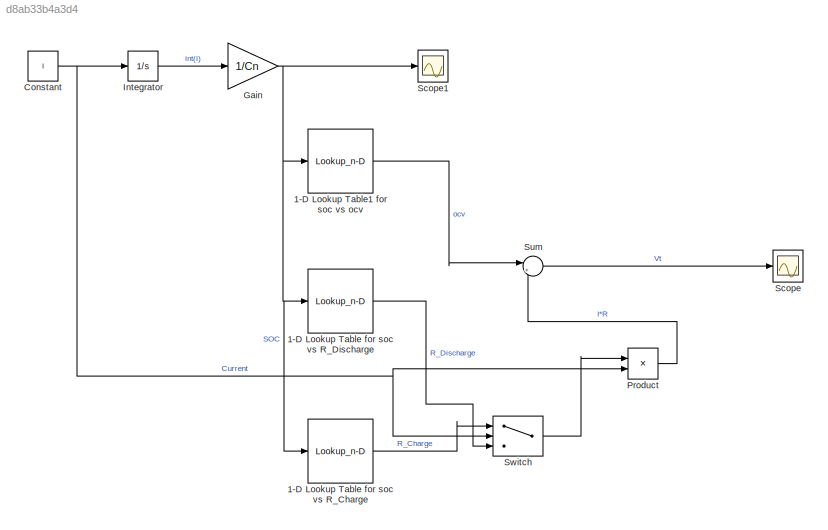
MODEL slx_d8ab33b4a3d4
KIND model
CONFIG AbsTol = auto
CONFIG EnableMultiTasking = off
CONFIG FixedStep = auto
CONFIG MaxStep = auto
CONFIG MinStep = auto
CONFIG RelTol = 1e-3
CONFIG SampleTimeConstraint = Unconstrained
CONFIG SolverName = VariableStepAuto
CONFIG StartTime = 0.0
CONFIG StopTime = Sim_Time
BLOCK [Lookup_n-D] 1-D Lookup Table for soc vs R_Charge
  BreakpointsForDimension1 = soc
  InputPortMap = u0
  InternalRulePriority = Speed
  NumberOfTableDimensions = 1
  RndMeth = Simplest
  Table = R_Charge
BLOCK [Lookup_n-D] 1-D Lookup Table for soc vs R_Discharge
  BreakpointsForDimension1 = soc
  InputPortMap = u0
  InternalRulePriority = Speed
  NumberOfTableDimensions = 1
  RndMeth = Simplest
  Table = R_Discharge
BLOCK [Lookup_n-D] 1-D Lookup Table1 for soc vs ocv
  BreakpointsForDimension1 = soc
  InputPortMap = u0
  InternalRulePriority = Speed
  NumberOfTableDimensions = 1
  RndMeth = Simplest
  Table = ocv
BLOCK [Constant] Constant
  Value = I
BLOCK [Gain] Gain
  Gain = 1/Cn
BLOCK [Integrator] Integrator
BLOCK [Product] Product
BLOCK [Scope] Scope
  Floating = off
  NumInputPorts = 1
  ScopeSpecificationString = Simulink.scopes.TimeScopeBlockCfg('CurrentConfiguration', extmgr.ConfigurationSet(extmgr.Configuration('Core','General UI',true),extmgr.Configuration('Core','Source UI',true),extmgr.Configuration('Sources','WiredSimulink',true),extmgr.Configuration('Visuals','Time Domain',true,'SerializedDisplays',{struct('MinYLimReal','2.54318','MaxYLimReal','4.79138','YLabelReal','','MinYLimMag','2.54318','MaxYL...<+1349ch>
BLOCK [Scope] Scope1
  Floating = off
  NumInputPorts = 1
  ScopeSpecificationString = Simulink.scopes.TimeScopeBlockCfg('CurrentConfiguration', extmgr.ConfigurationSet(extmgr.Configuration('Core','General UI',true),extmgr.Configuration('Core','Source UI',true),extmgr.Configuration('Sources','WiredSimulink',true,'DataLoggingVariableName','ScopeData1'),extmgr.Configuration('Visuals','Time Domain',true,'SerializedDisplays',{struct('MinYLimReal','-0.125','MaxYLimReal','1.125','YLabelRe...<+1350ch>
BLOCK [Sum] Sum
  Inputs = |++
BLOCK [Switch] Switch
  Criteria = u2 > Threshold
  InputSameDT = off
  SaturateOnIntegerOverflow = off
LINE 1-D Lookup Table for soc vs R_Charge:1 -> Switch:1
LINE 1-D Lookup Table for soc vs R_Discharge:1 -> Switch:3
LINE 1-D Lookup Table1 for soc vs ocv:1 -> Sum:1
NET Constant:1 -> Integrator:1, Product:2, Switch:2
NET Gain:1 -> 1-D Lookup Table for soc vs R_Charge:1, 1-D Lookup Table for soc vs R_Discharge:1, 1-D Lookup Table1 for soc vs ocv:1, Scope1:1
LINE Integrator:1 -> Gain:1
LINE Product:1 -> Sum:2
LINE Sum:1 -> Scope:1
LINE Switch:1 -> Product:1
note: NET lines group one-source signal fan-out (src -> all destinations, sorted); 1:1 wires keep LINE
